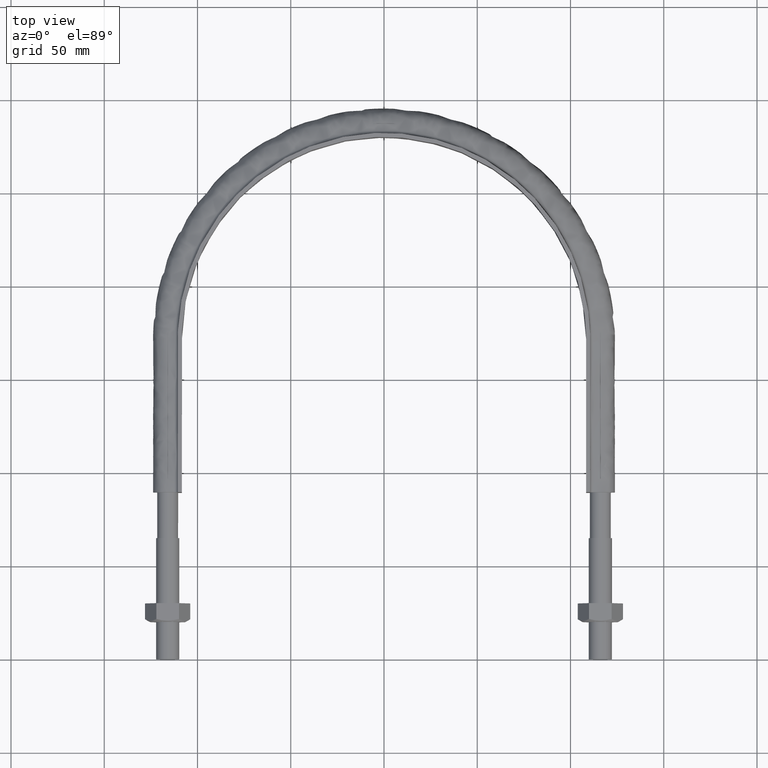
[diagram: clean part render]
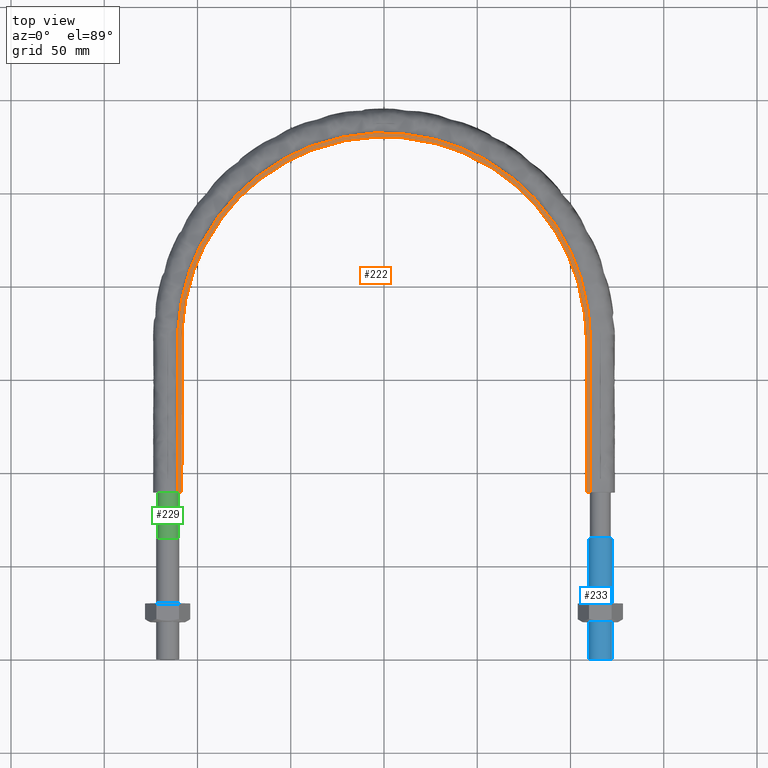
[diagram: same view with three faces highlighted in distinct colors, each labeled with its STEP entity id]
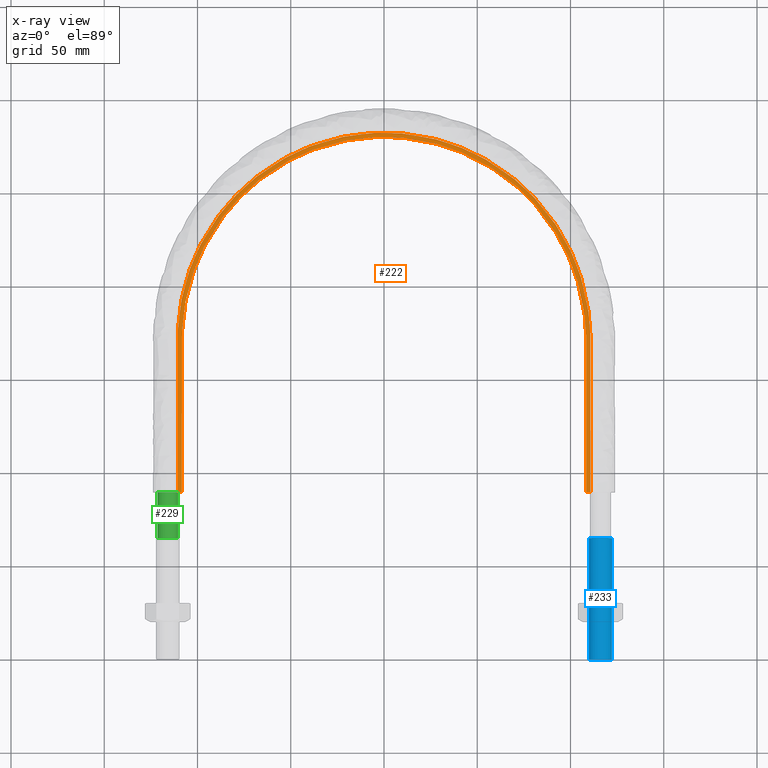
[diagram: x-ray of the same camera — body ghosted, the three highlighted faces saturated]
A machine part, top view with three faces highlighted in distinct colors.
The next image is the same camera in x-ray (body ghosted, the three faces saturated) — at least one of them is partly hidden behind the body in this view.
Their STEP definitions:

[orange] entity #222 — the highlighted planar face has unit normal (0, 0, 1).
#222 = ADVANCED_FACE( '', ( #268 ), #269, .T. );
#268 = FACE_OUTER_BOUND( '', #556, .T. );
#269 = PLANE( '', #557 );
#556 = EDGE_LOOP( '', ( #1380, #1381, #1382, #1383 ) );
#557 = AXIS2_PLACEMENT_3D( '', #1384, #1385, #1386 );
#1380 = ORIENTED_EDGE( '', *, *, #1654, .T. );
#1381 = ORIENTED_EDGE( '', *, *, #1662, .T. );
#1382 = ORIENTED_EDGE( '', *, *, #1663, .T. );
#1383 = ORIENTED_EDGE( '', *, *, #1664, .F. );
#1384 = CARTESIAN_POINT( '', ( 150.000000000000, 389.500000000000, 15.0000000000000 ) );
#1385 = DIRECTION( '', ( 0.000000000000000, 0.000000000000000, 1.00000000000000 ) );
#1386 = DIRECTION( '', ( 1.00000000000000, 0.000000000000000, 0.000000000000000 ) );
#1654 = EDGE_CURVE( '', #1738, #1736, #1739, .T. );
#1662 = EDGE_CURVE( '', #1736, #1752, #1753, .T. );
#1663 = EDGE_CURVE( '', #1752, #1754, #1755, .T. );
#1664 = EDGE_CURVE( '', #1738, #1754, #1756, .T. );
#1736 = VERTEX_POINT( '', #1884 );
#1738 = VERTEX_POINT( '', #1887 );
#1739 = LINE( '', #1888, #1889 );
#1752 = VERTEX_POINT( '', #1986 );
#1753 = B_SPLINE_CURVE_WITH_KNOTS( '', 3, ( #1987, #1988, #1989, #1990, #1991, #1992, #1993, #1994, #1995, #1996, #1997, #1998, #1999, #2000, #2001, #2002, #2003 ), .UNSPECIFIED., .F., .F., ( 4, 3, 1, 1, 1, 1, 1, 1, 1, 3, 4 ), ( -10.0000000000000, -9.00000000000000, -8.00000000000000, -7.00000000000000, -6.00000000000000, -5.00000000000000, -4.00000000000000, -3.00000000000000, -2.00000000000000, -1.00000000000000, 0.000000000000000 ), .UNSPECIFIED. );
#1754 = VERTEX_POINT( '', #2004 );
#1755 = LINE( '', #2005, #2006 );
#1756 = B_SPLINE_CURVE_WITH_KNOTS( '', 3, ( #2007, #2008, #2009, #2010, #2011, #2012, #2013, #2014, #2015, #2016, #2017, #2018, #2019, #2020, #2021, #2022, #2023 ), .UNSPECIFIED., .F., .F., ( 4, 3, 1, 1, 1, 1, 1, 1, 1, 3, 4 ), ( -10.0000000000000, -9.00000000000000, -8.00000000000000, -7.00000000000000, -6.00000000000000, -5.00000000000000, -4.00000000000000, -3.00000000000000, -2.00000000000000, -1.00000000000000, 0.000000000000000 ), .UNSPECIFIED. );
#1884 = CARTESIAN_POINT( '', ( -108.400000000000, 89.5000000000003, 15.0000000000000 ) );
#1887 = CARTESIAN_POINT( '', ( -110.600000000000, 89.5000000000003, 15.0000000000000 ) );
#1888 = CARTESIAN_POINT( '', ( -150.000000000000, 89.5000000000003, 15.0000000000000 ) );
#1889 = VECTOR( '', #2386, 1000.00000000000 );
#1986 = CARTESIAN_POINT( '', ( 108.400000000000, 89.5000000000003, 15.0000000000000 ) );
#1987 = CARTESIAN_POINT( '', ( -108.400000000000, 89.5000000000001, 15.0000000000001 ) );
#1988 = CARTESIAN_POINT( '', ( -108.400000000000, 116.866666666667, 15.0000000000001 ) );
#1989 = CARTESIAN_POINT( '', ( -108.400000000000, 144.233333333333, 15.0000000000001 ) );
#1990 = CARTESIAN_POINT( '', ( -108.400000000000, 171.600000000000, 15.0000000000001 ) );
#1991 = CARTESIAN_POINT( '', ( -108.400000000000, 185.774498518656, 15.0000000000001 ) );
#1992 = CARTESIAN_POINT( '', ( -102.755814879494, 214.168943035043, 15.0000000000001 ) );
#1993 = CARTESIAN_POINT( '', ( -78.6458958671129, 250.244256009620, 15.0000000000001 ) );
#1994 = CARTESIAN_POINT( '', ( -42.5628521357854, 274.356283410206, 15.0000000000001 ) );
#1995 = CARTESIAN_POINT( '', ( 7.62679078902217E-014, 282.821858294897, 15.0000000000001 ) );
#1996 = CARTESIAN_POINT( '', ( 42.5628521357854, 274.356283410206, 15.0000000000001 ) );
#1997 = CARTESIAN_POINT( '', ( 78.6458958671129, 250.244256009621, 15.0000000000001 ) );
#1998 = CARTESIAN_POINT( '', ( 102.755814879494, 214.168943035043, 15.0000000000001 ) );
#1999 = CARTESIAN_POINT( '', ( 108.400000000000, 185.774498518656, 15.0000000000001 ) );
#2000 = CARTESIAN_POINT( '', ( 108.400000000000, 171.600000000000, 15.0000000000001 ) );
#2001 = CARTESIAN_POINT( '', ( 108.400000000000, 144.233333333333, 15.0000000000001 ) );
#2002 = CARTESIAN_POINT( '', ( 108.400000000000, 116.866666666667, 15.0000000000001 ) );
#2003 = CARTESIAN_POINT( '', ( 108.400000000000, 89.5000000000000, 15.0000000000001 ) );
#2004 = CARTESIAN_POINT( '', ( 110.600000000000, 89.5000000000003, 15.0000000000000 ) );
#2005 = CARTESIAN_POINT( '', ( -150.000000000000, 89.5000000000003, 15.0000000000000 ) );
#2006 = VECTOR( '', #2389, 1000.00000000000 );
#2007 = CARTESIAN_POINT( '', ( -110.600000000000, 89.5000000000001, 15.0000000000000 ) );
#2008 = CARTESIAN_POINT( '', ( -110.600000000000, 116.866666666667, 15.0000000000000 ) );
#2009 = CARTESIAN_POINT( '', ( -110.600000000000, 144.233333333333, 15.0000000000000 ) );
#2010 = CARTESIAN_POINT( '', ( -110.600000000000, 171.600000000000, 15.0000000000000 ) );
#2011 = CARTESIAN_POINT( '', ( -110.600000000000, 186.066236657480, 15.0000000000000 ) );
#2012 = CARTESIAN_POINT( '', ( -104.841264996974, 215.031001602308, 15.0000000000000 ) );
#2013 = CARTESIAN_POINT( '', ( -80.2420302850801, 251.840865123178, 15.0000000000000 ) );
#2014 = CARTESIAN_POINT( '', ( -43.4266738580984, 276.441597900375, 15.0000000000000 ) );
#2015 = CARTESIAN_POINT( '', ( 7.30748965663105E-014, 285.079201049813, 15.0000000000000 ) );
#2016 = CARTESIAN_POINT( '', ( 43.4266738580984, 276.441597900375, 15.0000000000000 ) );
#2017 = CARTESIAN_POINT( '', ( 80.2420302850802, 251.840865123178, 15.0000000000000 ) );
#2018 = CARTESIAN_POINT( '', ( 104.841264996974, 215.031001602308, 15.0000000000000 ) );
#2019 = CARTESIAN_POINT( '', ( 110.600000000000, 186.066236657480, 15.0000000000000 ) );
#2020 = CARTESIAN_POINT( '', ( 110.600000000000, 171.600000000000, 15.0000000000000 ) );
#2021 = CARTESIAN_POINT( '', ( 110.600000000000, 144.233333333333, 15.0000000000000 ) );
#2022 = CARTESIAN_POINT( '', ( 110.600000000000, 116.866666666667, 15.0000000000000 ) );
#2023 = CARTESIAN_POINT( '', ( 110.600000000000, 89.5000000000000, 15.0000000000000 ) );
#2386 = DIRECTION( '', ( 1.00000000000000, -1.22460635382238E-016, 0.000000000000000 ) );
#2389 = DIRECTION( '', ( 1.00000000000000, -1.22460635382238E-016, 0.000000000000000 ) );

[blue] entity #233 — the highlighted cylindrical surface (bore or boss wall) has radius 6.25 mm, axis along (0, 1, 0).
#233 = ADVANCED_FACE( '', ( #297, #298 ), #299, .T. );
#297 = FACE_OUTER_BOUND( '', #1298, .T. );
#298 = FACE_OUTER_BOUND( '', #1299, .T. );
#299 = CYLINDRICAL_SURFACE( '', #1300, 6.25000000000003 );
#1298 = EDGE_LOOP( '', ( #1480 ) );
#1299 = EDGE_LOOP( '', ( #1481 ) );
#1300 = AXIS2_PLACEMENT_3D( '', #1482, #1483, #1484 );
#1480 = ORIENTED_EDGE( '', *, *, #1687, .T. );
#1481 = ORIENTED_EDGE( '', *, *, #1688, .F. );
#1482 = CARTESIAN_POINT( '', ( 116.000000000000, 370.000000000000, 0.000000000000000 ) );
#1483 = DIRECTION( '', ( 1.83690953073357E-016, 1.00000000000000, 0.000000000000000 ) );
#1484 = DIRECTION( '', ( -1.00000000000000, 1.83690953073357E-016, 0.000000000000000 ) );
#1687 = EDGE_CURVE( '', #1799, #1799, #1800, .F. );
#1688 = EDGE_CURVE( '', #1801, #1801, #1802, .F. );
#1799 = VERTEX_POINT( '', #2145 );
#1800 = CIRCLE( '', #2146, 6.25000000000003 );
#1801 = VERTEX_POINT( '', #2147 );
#1802 = CIRCLE( '', #2148, 6.25000000000003 );
#2145 = CARTESIAN_POINT( '', ( 116.000000000000, -5.74245986591053E-014, -6.25000000000003 ) );
#2146 = AXIS2_PLACEMENT_3D( '', #2403, #2404, #2405 );
#2147 = CARTESIAN_POINT( '', ( 122.250000000000, 65.0000000000000, 0.000000000000000 ) );
#2148 = AXIS2_PLACEMENT_3D( '', #2406, #2407, #2408 );
#2403 = CARTESIAN_POINT( '', ( 116.000000000000, -5.55111512312578E-014, 0.000000000000000 ) );
#2404 = DIRECTION( '', ( -2.44921270764475E-016, -1.00000000000000, 3.06151588455594E-016 ) );
#2405 = DIRECTION( '', ( 0.000000000000000, -3.06151588455594E-016, -1.00000000000000 ) );
#2406 = CARTESIAN_POINT( '', ( 116.000000000000, 65.0000000000000, 0.000000000000000 ) );
#2407 = DIRECTION( '', ( -1.83690953073357E-016, -1.00000000000000, 0.000000000000000 ) );
#2408 = DIRECTION( '', ( 1.00000000000000, -1.83690953073357E-016, 0.000000000000000 ) );

[green] entity #229 — the highlighted cylindrical surface (bore or boss wall) has radius 5.6 mm, axis along (-0, -1, 0).
#229 = ADVANCED_FACE( '', ( #286, #287 ), #288, .T. );
#286 = FACE_OUTER_BOUND( '', #1287, .T. );
#287 = FACE_OUTER_BOUND( '', #1288, .T. );
#288 = CYLINDRICAL_SURFACE( '', #1289, 5.59999999999999 );
#1287 = EDGE_LOOP( '', ( #1454, #1455, #1456, #1457, #1458, #1459, #1460, #1461 ) );
#1288 = EDGE_LOOP( '', ( #1462 ) );
#1289 = AXIS2_PLACEMENT_3D( '', #1463, #1464, #1465 );
#1454 = ORIENTED_EDGE( '', *, *, #1685, .F. );
#1455 = ORIENTED_EDGE( '', *, *, #1684, .F. );
#1456 = ORIENTED_EDGE( '', *, *, #1683, .F. );
#1457 = ORIENTED_EDGE( '', *, *, #1682, .F. );
#1458 = ORIENTED_EDGE( '', *, *, #1681, .F. );
#1459 = ORIENTED_EDGE( '', *, *, #1680, .F. );
#1460 = ORIENTED_EDGE( '', *, *, #1679, .F. );
#1461 = ORIENTED_EDGE( '', *, *, #1678, .F. );
#1462 = ORIENTED_EDGE( '', *, *, #1686, .F. );
#1463 = CARTESIAN_POINT( '', ( -116.000000000000, 89.5000000000000, -2.74005671667757E-014 ) );
#1464 = DIRECTION( '', ( -2.44921270764475E-016, -1.00000000000000, 3.06151588455594E-016 ) );
#1465 = DIRECTION( '', ( 1.00000000000000, -2.44921270764475E-016, -1.50944387002457E-047 ) );
#1678 = EDGE_CURVE( '', #1781, #1782, #1783, .T. );
#1679 = EDGE_CURVE( '', #1782, #1784, #1785, .T. );
#1680 = EDGE_CURVE( '', #1784, #1786, #1787, .T. );
#1681 = EDGE_CURVE( '', #1786, #1788, #1789, .T. );
#1682 = EDGE_CURVE( '', #1788, #1790, #1791, .T. );
#1683 = EDGE_CURVE( '', #1790, #1792, #1793, .T. );
#1684 = EDGE_CURVE( '', #1792, #1794, #1795, .T. );
#1685 = EDGE_CURVE( '', #1794, #1781, #1796, .T. );
#1686 = EDGE_CURVE( '', #1797, #1797, #1798, .F. );
#1781 = VERTEX_POINT( '', #2103 );
#1782 = VERTEX_POINT( '', #2104 );
#1783 = B_SPLINE_CURVE_WITH_KNOTS( '', 3, ( #2105, #2106, #2107, #2108 ), .UNSPECIFIED., .F., .F., ( 4, 4 ), ( 0.000000000000000, 1.00000000000000 ), .UNSPECIFIED. );
#1784 = VERTEX_POINT( '', #2109 );
#1785 = B_SPLINE_CURVE_WITH_KNOTS( '', 3, ( #2110, #2111, #2112, #2113 ), .UNSPECIFIED., .F., .F., ( 4, 4 ), ( 0.000000000000000, 1.00000000000000 ), .UNSPECIFIED. );
#1786 = VERTEX_POINT( '', #2114 );
#1787 = B_SPLINE_CURVE_WITH_KNOTS( '', 3, ( #2115, #2116, #2117, #2118 ), .UNSPECIFIED., .F., .F., ( 4, 4 ), ( 0.000000000000000, 1.00000000000000 ), .UNSPECIFIED. );
#1788 = VERTEX_POINT( '', #2119 );
#1789 = B_SPLINE_CURVE_WITH_KNOTS( '', 3, ( #2120, #2121, #2122, #2123 ), .UNSPECIFIED., .F., .F., ( 4, 4 ), ( 0.000000000000000, 1.00000000000000 ), .UNSPECIFIED. );
#1790 = VERTEX_POINT( '', #2124 );
#1791 = B_SPLINE_CURVE_WITH_KNOTS( '', 3, ( #2125, #2126, #2127, #2128 ), .UNSPECIFIED., .F., .F., ( 4, 4 ), ( 0.000000000000000, 1.00000000000000 ), .UNSPECIFIED. );
#1792 = VERTEX_POINT( '', #2129 );
#1793 = B_SPLINE_CURVE_WITH_KNOTS( '', 3, ( #2130, #2131, #2132, #2133 ), .UNSPECIFIED., .F., .F., ( 4, 4 ), ( 0.000000000000000, 1.00000000000000 ), .UNSPECIFIED. );
#1794 = VERTEX_POINT( '', #2134 );
#1795 = B_SPLINE_CURVE_WITH_KNOTS( '', 3, ( #2135, #2136, #2137, #2138 ), .UNSPECIFIED., .F., .F., ( 4, 4 ), ( 0.000000000000000, 1.00000000000000 ), .UNSPECIFIED. );
#1796 = B_SPLINE_CURVE_WITH_KNOTS( '', 3, ( #2139, #2140, #2141, #2142 ), .UNSPECIFIED., .F., .F., ( 4, 4 ), ( 0.000000000000000, 1.00000000000000 ), .UNSPECIFIED. );
#1797 = VERTEX_POINT( '', #2143 );
#1798 = CIRCLE( '', #2144, 5.59999999999999 );
#2103 = CARTESIAN_POINT( '', ( -110.400000000000, 89.5000000000002, 6.88494635144106E-014 ) );
#2104 = CARTESIAN_POINT( '', ( -112.040202025355, 89.5000000000000, -3.95979797464440 ) );
#2105 = CARTESIAN_POINT( '', ( -110.400000000000, 89.5000000000004, 1.11347563114261E-013 ) );
#2106 = CARTESIAN_POINT( '', ( -110.400000000000, 89.5000000000004, -1.46274169979680 ) );
#2107 = CARTESIAN_POINT( '', ( -111.005887450304, 89.5000000000004, -2.92548339959369 ) );
#2108 = CARTESIAN_POINT( '', ( -112.040202025355, 89.5000000000004, -3.95979797464444 ) );
#2109 = CARTESIAN_POINT( '', ( -116.000000000000, 89.5000000000000, -5.60000000000002 ) );
#2110 = CARTESIAN_POINT( '', ( -112.040202025379, 89.5000000000004, -3.95979797466830 ) );
#2111 = CARTESIAN_POINT( '', ( -113.074516600428, 89.5000000000004, -4.99411254970464 ) );
#2112 = CARTESIAN_POINT( '', ( -114.537258300214, 89.5000000000004, -5.59999999999998 ) );
#2113 = CARTESIAN_POINT( '', ( -116.000000000000, 89.5000000000004, -5.59999999999999 ) );
#2114 = CARTESIAN_POINT( '', ( -119.959797974650, 89.5000000000000, -3.95979797463928 ) );
#2115 = CARTESIAN_POINT( '', ( -116.000000000005, 89.5000000000004, -5.60000000000008 ) );
#2116 = CARTESIAN_POINT( '', ( -117.462741699802, 89.5000000000004, -5.59999999999892 ) );
#2117 = CARTESIAN_POINT( '', ( -118.925483399599, 89.5000000000004, -4.99411254969288 ) );
#2118 = CARTESIAN_POINT( '', ( -119.959797974650, 89.5000000000004, -3.95979797463937 ) );
#2119 = CARTESIAN_POINT( '', ( -121.600000000000, 89.5000000000000, 1.22458835622041E-014 ) );
#2120 = CARTESIAN_POINT( '', ( -119.959797974660, 89.5000000000004, -3.95979797463016 ) );
#2121 = CARTESIAN_POINT( '', ( -120.994112549705, 89.5000000000004, -2.92548339957716 ) );
#2122 = CARTESIAN_POINT( '', ( -121.600000000005, 89.5000000000004, -1.46274169978013 ) );
#2123 = CARTESIAN_POINT( '', ( -121.600000000000, 89.5000000000004, 1.81416133777800E-011 ) );
#2124 = CARTESIAN_POINT( '', ( -119.959797974644, 89.5000000000000, 3.95979797464519 ) );
#2125 = CARTESIAN_POINT( '', ( -121.600000000000, 89.5000000000004, 1.87720518711108E-011 ) );
#2126 = CARTESIAN_POINT( '', ( -121.599999999995, 89.5000000000004, 1.46274169980972 ) );
#2127 = CARTESIAN_POINT( '', ( -120.994112549691, 89.5000000000004, 2.92548339959889 ) );
#2128 = CARTESIAN_POINT( '', ( -119.959797974644, 89.5000000000004, 3.95979797464535 ) );
#2129 = CARTESIAN_POINT( '', ( -116.000000000000, 89.5000000000000, 5.59999999999997 ) );
#2130 = CARTESIAN_POINT( '', ( -119.959797974644, 89.5000000000004, 3.95979797464535 ) );
#2131 = CARTESIAN_POINT( '', ( -118.925483399593, 89.5000000000004, 4.99411254969570 ) );
#2132 = CARTESIAN_POINT( '', ( -117.462741699797, 89.5000000000004, 5.60000000000000 ) );
#2133 = CARTESIAN_POINT( '', ( -116.000000000000, 89.5000000000004, 5.59999999999999 ) );
#2134 = CARTESIAN_POINT( '', ( -112.040202025356, 89.5000000000000, 3.95979797464564 ) );
#2135 = CARTESIAN_POINT( '', ( -116.000000000000, 89.5000000000004, 5.59999999999997 ) );
#2136 = CARTESIAN_POINT( '', ( -114.537258300204, 89.5000000000004, 5.60000000000007 ) );
#2137 = CARTESIAN_POINT( '', ( -113.074516600407, 89.5000000000004, 4.99411254969576 ) );
#2138 = CARTESIAN_POINT( '', ( -112.040202025356, 89.5000000000004, 3.95979797464555 ) );
#2139 = CARTESIAN_POINT( '', ( -112.040202025356, 89.5000000000004, 3.95979797464556 ) );
#2140 = CARTESIAN_POINT( '', ( -111.005887450305, 89.5000000000004, 2.92548339959475 ) );
#2141 = CARTESIAN_POINT( '', ( -110.400000000000, 89.5000000000004, 1.46274169979737 ) );
#2142 = CARTESIAN_POINT( '', ( -110.400000000000, 89.5000000000004, -1.08420217248550E-016 ) );
#2143 = CARTESIAN_POINT( '', ( -116.000000000000, 65.0000000000000, 5.59999999999997 ) );
#2144 = AXIS2_PLACEMENT_3D( '', #2400, #2401, #2402 );
#2400 = CARTESIAN_POINT( '', ( -116.000000000000, 65.0000000000000, -1.98998532496136E-014 ) );
#2401 = DIRECTION( '', ( 6.19816741375923E-048, 1.00000000000000, 3.37423662409983E-032 ) );
#2402 = DIRECTION( '', ( 0.000000000000000, -3.37423662409983E-032, 1.00000000000000 ) );